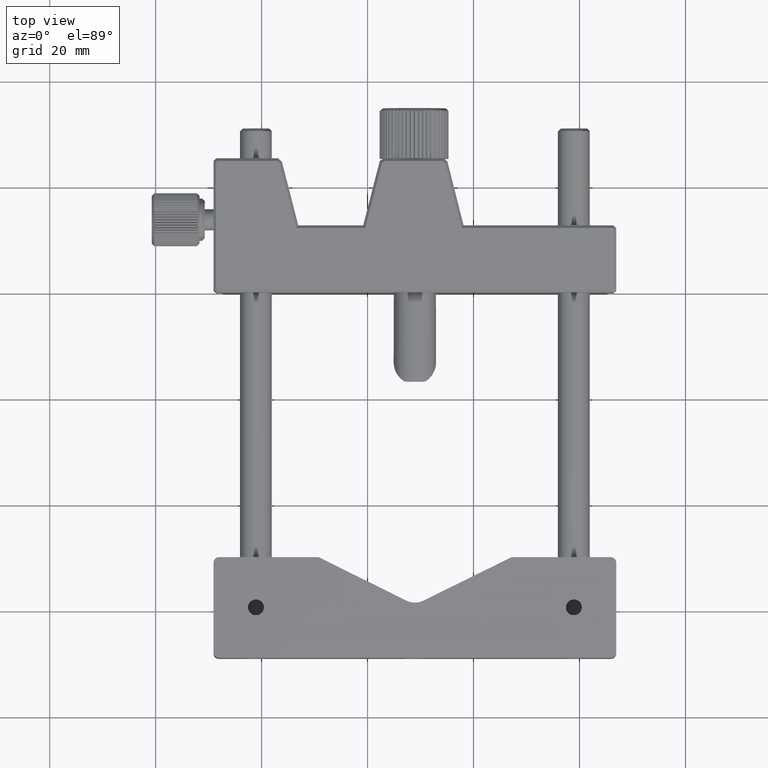
[diagram: clean part render]
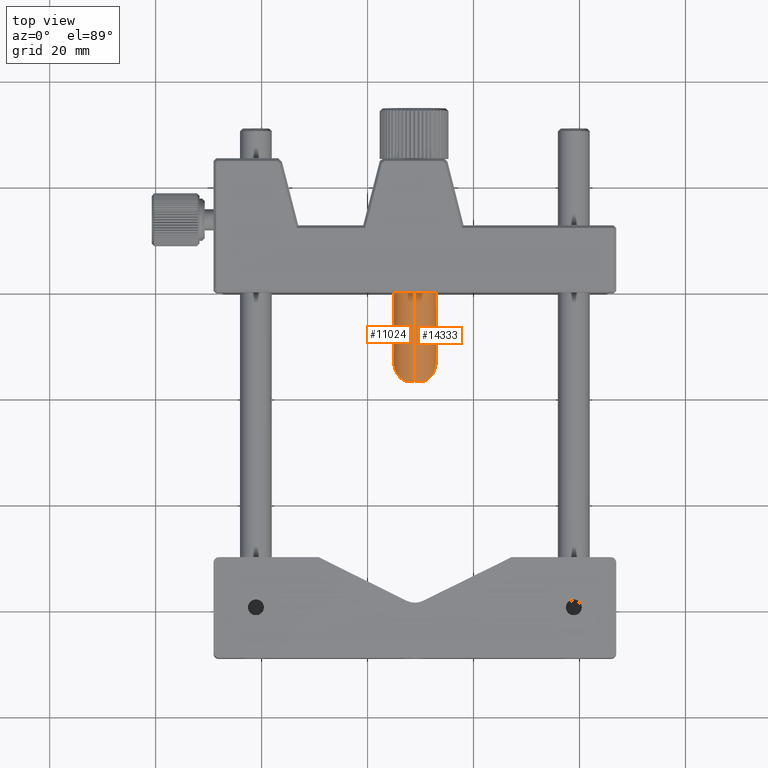
[diagram: same view with one multi-face feature highlighted, each face labeled with its STEP entity id]
A machine part, top view. The highlighted faces form ONE feature: a constant-radius fillet chain: 2 tangent blend faces with common blend radius 4 mm. The faces share edges in the B-rep.
Their STEP definitions:
[1] entity #14333 (Cylinder):
#233 = VECTOR ( 'NONE', #3806, 1000.000000000000000 ) ;
#636 = VECTOR ( 'NONE', #7120, 1000.000000000000000 ) ;
#1130 = DIRECTION ( 'NONE',  ( -1.435192739162169912E-32, -1.000000000000000000, -1.378887143529729752E-16 ) ) ;
#1321 = VERTEX_POINT ( 'NONE', #1977 ) ;
#1553 = CARTESIAN_POINT ( 'NONE',  ( -26.33676122642620143, 44.48886477512959203, 4.000000000000006217 ) ) ;
#1658 = CARTESIAN_POINT ( 'NONE',  ( -22.34358818844933126, 29.79592092719853014, -1.503396324891914881 ) ) ;
#1686 = CARTESIAN_POINT ( 'NONE',  ( -26.33676122642620143, 27.78886477512959985, 3.831770837171239642E-15 ) ) ;
#1964 = ORIENTED_EDGE ( 'NONE', *, *, #6843, .F. ) ;
#1977 = CARTESIAN_POINT ( 'NONE',  ( -26.33676122642620143, 44.48886477512959203, -3.999999999999994227 ) ) ;
#2137 = CARTESIAN_POINT ( 'NONE',  ( -26.33676122642620143, 27.78886477512959985, -3.999999999999996447 ) ) ;
#2299 = EDGE_CURVE ( 'NONE', #4495, #7782, #10448, .T. ) ;
#2345 = CYLINDRICAL_SURFACE ( 'NONE', #11910, 4.000000000000000000 ) ;
#2670 = LINE ( 'NONE', #11307, #233 ) ;
#3036 = VERTEX_POINT ( 'NONE', #1553 ) ;
#3383 = CARTESIAN_POINT ( 'NONE',  ( -26.33676122642620143, 27.78886477512959985, 3.831770837171239642E-15 ) ) ;
#3543 = CARTESIAN_POINT ( 'NONE',  ( -22.33680297354780109, 31.28881706405729801, -0.01827498918126289895 ) ) ;
#3806 = DIRECTION ( 'NONE',  ( 1.435192739162169912E-32, 1.000000000000000000, 1.378887143529729752E-16 ) ) ;
#3904 = DIRECTION ( 'NONE',  ( 0.000000000000000000, 0.000000000000000000, -1.000000000000000000 ) ) ;
#4026 = CARTESIAN_POINT ( 'NONE',  ( -22.33680297354780109, 31.28881706405729801, -0.01827498918126289895 ) ) ;
#4052 = AXIS2_PLACEMENT_3D ( 'NONE', #11408, #1130, #3904 ) ;
#4495 = VERTEX_POINT ( 'NONE', #9950 ) ;
#4567 = CIRCLE ( 'NONE', #13148, 4.000000000000000000 ) ;
#5443 = DIRECTION ( 'NONE',  ( 0.000000000000000000, 0.000000000000000000, -1.000000000000000000 ) ) ;
#5571 = CARTESIAN_POINT ( 'NONE',  ( -23.10077482203454835, 28.51161755280060461, -2.781011221033860892 ) ) ;
#5722 =( BOUNDED_CURVE ( )  B_SPLINE_CURVE ( 3, ( #7627, #7467, #13635, #4026 ),
 .UNSPECIFIED., .F., .F. ) 
 B_SPLINE_CURVE_WITH_KNOTS ( ( 4, 4 ),
 ( 0.5053605102840699193, 1.575365089984409828 ),
 .UNSPECIFIED. ) 
 CURVE ( )  GEOMETRIC_REPRESENTATION_ITEM ( )  RATIONAL_B_SPLINE_CURVE ( ( 1.000000000000000000, 0.9068449745419396857, 0.9068449745419396857, 1.000000000000000000 ) ) 
 REPRESENTATION_ITEM ( '' )  );
#5940 = CARTESIAN_POINT ( 'NONE',  ( -26.33676122642620143, 27.78886477512959985, 3.831770837171239642E-15 ) ) ;
#6669 = DIRECTION ( 'NONE',  ( -1.435192739162169912E-32, -1.000000000000000000, -1.378887143529729752E-16 ) ) ;
#6843 = EDGE_CURVE ( 'NONE', #15106, #8415, #4567, .T. ) ;
#7120 = DIRECTION ( 'NONE',  ( 1.435192739162169912E-32, 1.000000000000000000, 1.378887143529729752E-16 ) ) ;
#7467 = CARTESIAN_POINT ( 'NONE',  ( -23.08843156359390747, 28.51090291081326455, 2.774181901836934916 ) ) ;
#7627 = CARTESIAN_POINT ( 'NONE',  ( -24.40026955332249869, 27.78886477512959985, 3.500000000000000000 ) ) ;
#7782 = VERTEX_POINT ( 'NONE', #12145 ) ;
#8237 = ORIENTED_EDGE ( 'NONE', *, *, #8701, .T. ) ;
#8415 = VERTEX_POINT ( 'NONE', #10483 ) ;
#8434 = DIRECTION ( 'NONE',  ( 0.000000000000000000, 0.000000000000000000, -1.000000000000000000 ) ) ;
#8616 = VERTEX_POINT ( 'NONE', #3543 ) ;
#8701 = EDGE_CURVE ( 'NONE', #15106, #8616, #5722, .T. ) ;
#9335 = CARTESIAN_POINT ( 'NONE',  ( -22.33680297354780109, 31.28881706405729801, -0.01827498918126289895 ) ) ;
#9749 = ORIENTED_EDGE ( 'NONE', *, *, #14986, .T. ) ;
#9781 = FACE_OUTER_BOUND ( 'NONE', #12872, .T. ) ;
#9950 = CARTESIAN_POINT ( 'NONE',  ( -26.33676122642620143, 27.78886477512959985, -3.999999999999996447 ) ) ;
#10448 = CIRCLE ( 'NONE', #12530, 4.000000000000000000 ) ;
#10483 = CARTESIAN_POINT ( 'NONE',  ( -26.33676122642620143, 27.78886477512959985, 4.000000000000003553 ) ) ;
#10522 = EDGE_CURVE ( 'NONE', #8415, #3036, #2670, .T. ) ;
#10824 = CIRCLE ( 'NONE', #4052, 4.000000000000000000 ) ;
#11149 = DIRECTION ( 'NONE',  ( 1.435192739162169912E-32, 1.000000000000000000, 1.378887143529729752E-16 ) ) ;
#11151 = EDGE_CURVE ( 'NONE', #4495, #1321, #13297, .T. ) ;
#11307 = CARTESIAN_POINT ( 'NONE',  ( -26.33676122642620143, 27.78886477512959985, 4.000000000000003553 ) ) ;
#11408 = CARTESIAN_POINT ( 'NONE',  ( -26.33676122642620143, 44.48886477512959203, 6.134512366865890265E-15 ) ) ;
#11458 = ORIENTED_EDGE ( 'NONE', *, *, #2299, .F. ) ;
#11534 = CARTESIAN_POINT ( 'NONE',  ( -24.40026955332249869, 27.78886477512959985, -3.500000000000000000 ) ) ;
#11772 = ORIENTED_EDGE ( 'NONE', *, *, #11151, .T. ) ;
#11910 = AXIS2_PLACEMENT_3D ( 'NONE', #5940, #11149, #15791 ) ;
#11915 =( BOUNDED_CURVE ( )  B_SPLINE_CURVE ( 3, ( #9335, #1658, #5571, #11534 ),
 .UNSPECIFIED., .F., .F. ) 
 B_SPLINE_CURVE_WITH_KNOTS ( ( 4, 4 ),
 ( 1.575365089985187650, 2.636232143305869080 ),
 .UNSPECIFIED. ) 
 CURVE ( )  GEOMETRIC_REPRESENTATION_ITEM ( )  RATIONAL_B_SPLINE_CURVE ( ( 1.000000000000000000, 0.9083918848401526525, 0.9083918848401526525, 1.000000000000000000 ) ) 
 REPRESENTATION_ITEM ( '' )  );
#12145 = CARTESIAN_POINT ( 'NONE',  ( -24.40026955332249869, 27.78886477512959985, -3.500000000000000000 ) ) ;
#12530 = AXIS2_PLACEMENT_3D ( 'NONE', #3383, #14615, #8434 ) ;
#12595 = EDGE_CURVE ( 'NONE', #1321, #3036, #10824, .T. ) ;
#12872 = EDGE_LOOP ( 'NONE', ( #11458, #11772, #14856, #13864, #1964, #8237, #9749 ) ) ;
#13148 = AXIS2_PLACEMENT_3D ( 'NONE', #1686, #6669, #5443 ) ;
#13297 = LINE ( 'NONE', #2137, #636 ) ;
#13635 = CARTESIAN_POINT ( 'NONE',  ( -22.32995330924215338, 29.79739706993366255, 1.480952780377163602 ) ) ;
#13864 = ORIENTED_EDGE ( 'NONE', *, *, #10522, .F. ) ;
#14333 = ADVANCED_FACE ( 'NONE', ( #9781 ), #2345, .T. ) ;
#14615 = DIRECTION ( 'NONE',  ( -1.435192739162169912E-32, -1.000000000000000000, -1.378887143529729752E-16 ) ) ;
#14757 = CARTESIAN_POINT ( 'NONE',  ( -24.40026955332249869, 27.78886477512959985, 3.500000000000000000 ) ) ;
#14856 = ORIENTED_EDGE ( 'NONE', *, *, #12595, .T. ) ;
#14986 = EDGE_CURVE ( 'NONE', #8616, #7782, #11915, .T. ) ;
#15106 = VERTEX_POINT ( 'NONE', #14757 ) ;
#15791 = DIRECTION ( 'NONE',  ( 0.000000000000000000, 0.000000000000000000, 1.000000000000000000 ) ) ;
[2] entity #11024 (Cylinder):
#82 = VERTEX_POINT ( 'NONE', #10842 ) ;
#178 = CARTESIAN_POINT ( 'NONE',  ( -30.33671947930470125, 31.28881706405729801, -0.01827498918126289895 ) ) ;
#233 = VECTOR ( 'NONE', #3806, 1000.000000000000000 ) ;
#636 = VECTOR ( 'NONE', #7120, 1000.000000000000000 ) ;
#772 = CARTESIAN_POINT ( 'NONE',  ( -28.27325289952990062, 27.78886477512959985, 3.500000000000000000 ) ) ;
#822 = ORIENTED_EDGE ( 'NONE', *, *, #14155, .F. ) ;
#1048 = CARTESIAN_POINT ( 'NONE',  ( -29.57274763081784386, 28.51161755280051224, -2.781011221033927061 ) ) ;
#1321 = VERTEX_POINT ( 'NONE', #1977 ) ;
#1436 = DIRECTION ( 'NONE',  ( 0.000000000000000000, 0.000000000000000000, -1.000000000000000000 ) ) ;
#1553 = CARTESIAN_POINT ( 'NONE',  ( -26.33676122642620143, 44.48886477512959203, 4.000000000000006217 ) ) ;
#1825 = CARTESIAN_POINT ( 'NONE',  ( -30.34356914361028146, 29.79739706993364834, 1.480952780377264855 ) ) ;
#1939 = CIRCLE ( 'NONE', #13907, 4.000000000000000000 ) ;
#1977 = CARTESIAN_POINT ( 'NONE',  ( -26.33676122642620143, 44.48886477512959203, -3.999999999999994227 ) ) ;
#2137 = CARTESIAN_POINT ( 'NONE',  ( -26.33676122642620143, 27.78886477512959985, -3.999999999999996447 ) ) ;
#2200 = ORIENTED_EDGE ( 'NONE', *, *, #8167, .T. ) ;
#2362 = EDGE_CURVE ( 'NONE', #11349, #82, #4394, .T. ) ;
#2670 = LINE ( 'NONE', #11307, #233 ) ;
#2695 = DIRECTION ( 'NONE',  ( -1.435192739162169912E-32, -1.000000000000000000, -1.378887143529729752E-16 ) ) ;
#3036 = VERTEX_POINT ( 'NONE', #1553 ) ;
#3228 = EDGE_CURVE ( 'NONE', #6785, #11349, #14474, .T. ) ;
#3331 = CARTESIAN_POINT ( 'NONE',  ( -26.33676122642620143, 44.48886477512959203, 6.134512366865890265E-15 ) ) ;
#3806 = DIRECTION ( 'NONE',  ( 1.435192739162169912E-32, 1.000000000000000000, 1.378887143529729752E-16 ) ) ;
#4118 = ORIENTED_EDGE ( 'NONE', *, *, #2362, .T. ) ;
#4394 =( BOUNDED_CURVE ( )  B_SPLINE_CURVE ( 3, ( #13309, #1825, #8279, #772 ),
 .UNSPECIFIED., .F., .T. ) 
 B_SPLINE_CURVE_WITH_KNOTS ( ( 4, 4 ),
 ( 4.707820217195600954, 5.777824796895744797 ),
 .UNSPECIFIED. ) 
 CURVE ( )  GEOMETRIC_REPRESENTATION_ITEM ( )  RATIONAL_B_SPLINE_CURVE ( ( 1.000000000000000000, 0.9068449745419729924, 0.9068449745419729924, 1.000000000000000000 ) ) 
 REPRESENTATION_ITEM ( '' )  );
#4495 = VERTEX_POINT ( 'NONE', #9950 ) ;
#4522 = ORIENTED_EDGE ( 'NONE', *, *, #4958, .F. ) ;
#4958 = EDGE_CURVE ( 'NONE', #8415, #82, #5297, .T. ) ;
#5212 = CARTESIAN_POINT ( 'NONE',  ( -26.33676122642620143, 27.78886477512959985, 3.831770837171239642E-15 ) ) ;
#5297 = CIRCLE ( 'NONE', #8695, 4.000000000000000000 ) ;
#6172 = DIRECTION ( 'NONE',  ( -1.435192739162169912E-32, -1.000000000000000000, -1.378887143529729752E-16 ) ) ;
#6362 = DIRECTION ( 'NONE',  ( 0.000000000000000000, 0.000000000000000000, -1.000000000000000000 ) ) ;
#6373 = AXIS2_PLACEMENT_3D ( 'NONE', #9251, #7707, #15430 ) ;
#6785 = VERTEX_POINT ( 'NONE', #15543 ) ;
#7120 = DIRECTION ( 'NONE',  ( 1.435192739162169912E-32, 1.000000000000000000, 1.378887143529729752E-16 ) ) ;
#7484 = AXIS2_PLACEMENT_3D ( 'NONE', #5212, #2695, #6362 ) ;
#7707 = DIRECTION ( 'NONE',  ( 1.435192739162169912E-32, 1.000000000000000000, 1.378887143529729752E-16 ) ) ;
#7791 = FACE_OUTER_BOUND ( 'NONE', #15182, .T. ) ;
#8167 = EDGE_CURVE ( 'NONE', #3036, #1321, #1939, .T. ) ;
#8279 = CARTESIAN_POINT ( 'NONE',  ( -29.58509088925853092, 28.51090291081328232, 2.774181901836989539 ) ) ;
#8302 = DIRECTION ( 'NONE',  ( 0.000000000000000000, 0.000000000000000000, -1.000000000000000000 ) ) ;
#8415 = VERTEX_POINT ( 'NONE', #10483 ) ;
#8569 = CARTESIAN_POINT ( 'NONE',  ( -30.33671947930470125, 31.28881706405729801, -0.01827498918126289895 ) ) ;
#8695 = AXIS2_PLACEMENT_3D ( 'NONE', #13816, #10002, #1436 ) ;
#9007 = CYLINDRICAL_SURFACE ( 'NONE', #6373, 4.000000000000000000 ) ;
#9251 = CARTESIAN_POINT ( 'NONE',  ( -26.33676122642620143, 27.78886477512959985, 3.831770837171239642E-15 ) ) ;
#9306 = CIRCLE ( 'NONE', #7484, 4.000000000000000000 ) ;
#9844 = ORIENTED_EDGE ( 'NONE', *, *, #11151, .F. ) ;
#9875 = CARTESIAN_POINT ( 'NONE',  ( -30.32993426440308227, 29.79592092719849106, -1.503396324891932201 ) ) ;
#9950 = CARTESIAN_POINT ( 'NONE',  ( -26.33676122642620143, 27.78886477512959985, -3.999999999999996447 ) ) ;
#10002 = DIRECTION ( 'NONE',  ( -1.435192739162169912E-32, -1.000000000000000000, -1.378887143529729752E-16 ) ) ;
#10483 = CARTESIAN_POINT ( 'NONE',  ( -26.33676122642620143, 27.78886477512959985, 4.000000000000003553 ) ) ;
#10522 = EDGE_CURVE ( 'NONE', #8415, #3036, #2670, .T. ) ;
#10657 = ORIENTED_EDGE ( 'NONE', *, *, #10522, .T. ) ;
#10842 = CARTESIAN_POINT ( 'NONE',  ( -28.27325289952990062, 27.78886477512959985, 3.500000000000000000 ) ) ;
#11024 = ADVANCED_FACE ( 'NONE', ( #7791 ), #9007, .T. ) ;
#11151 = EDGE_CURVE ( 'NONE', #4495, #1321, #13297, .T. ) ;
#11307 = CARTESIAN_POINT ( 'NONE',  ( -26.33676122642620143, 27.78886477512959985, 4.000000000000003553 ) ) ;
#11349 = VERTEX_POINT ( 'NONE', #178 ) ;
#13297 = LINE ( 'NONE', #2137, #636 ) ;
#13309 = CARTESIAN_POINT ( 'NONE',  ( -30.33671947930470125, 31.28881706405729801, -0.01827498918126289895 ) ) ;
#13577 = ORIENTED_EDGE ( 'NONE', *, *, #3228, .T. ) ;
#13816 = CARTESIAN_POINT ( 'NONE',  ( -26.33676122642620143, 27.78886477512959985, 3.831770837171239642E-15 ) ) ;
#13907 = AXIS2_PLACEMENT_3D ( 'NONE', #3331, #6172, #8302 ) ;
#14155 = EDGE_CURVE ( 'NONE', #6785, #4495, #9306, .T. ) ;
#14474 =( BOUNDED_CURVE ( )  B_SPLINE_CURVE ( 3, ( #15801, #1048, #9875, #8569 ),
 .UNSPECIFIED., .F., .F. ) 
 B_SPLINE_CURVE_WITH_KNOTS ( ( 4, 4 ),
 ( 3.646953163873773107, 4.707820217194621293 ),
 .UNSPECIFIED. ) 
 CURVE ( )  GEOMETRIC_REPRESENTATION_ITEM ( )  RATIONAL_B_SPLINE_CURVE ( ( 1.000000000000000000, 0.9083918848401244528, 0.9083918848401244528, 1.000000000000000000 ) ) 
 REPRESENTATION_ITEM ( '' )  );
#15182 = EDGE_LOOP ( 'NONE', ( #9844, #822, #13577, #4118, #4522, #10657, #2200 ) ) ;
#15430 = DIRECTION ( 'NONE',  ( 0.000000000000000000, 0.000000000000000000, 1.000000000000000000 ) ) ;
#15543 = CARTESIAN_POINT ( 'NONE',  ( -28.27325289952990062, 27.78886477512959985, -3.500000000000000000 ) ) ;
#15801 = CARTESIAN_POINT ( 'NONE',  ( -28.27325289952990062, 27.78886477512959985, -3.500000000000000000 ) ) ;